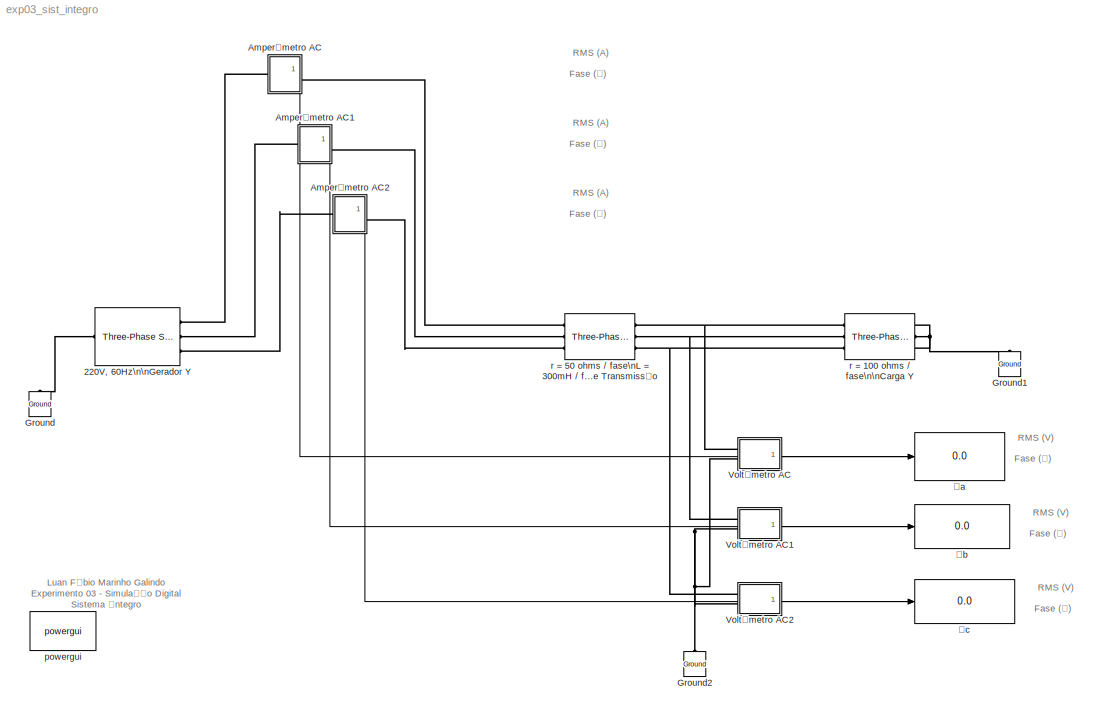
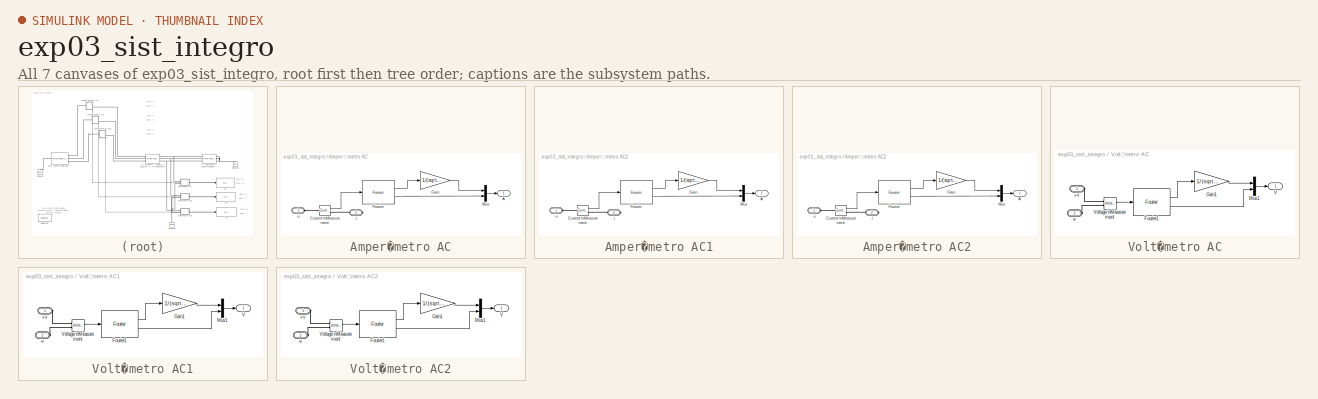
[diagram: thumbnail index - all 7 canvases of the model, root first then tree order]
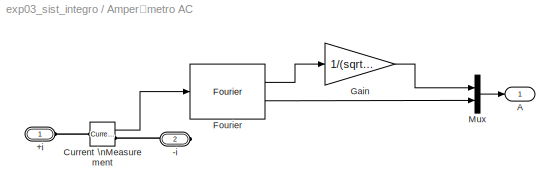
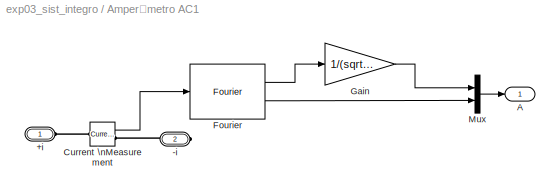
MODEL exp03_sist_integro
KIND model
BLOCK [Reference] 220V, 60Hz\n\nGerador Y  REF=powerlib/Electrical\nSources/Three-Phase Source
  BaseVoltage = 25e3
  BusType = swing
  Frequency = 60
  FunctionWithSeparateData = off
  GeneratePreprocessorConditionals = off
  Inductance = 0
  InternalConnection = Yn
  PhaseAngle = 90
  Ports = [0, 0, 0, 0, 0, 1, 3]
  Pref = 0
  Qmax = inf
  Qmin = -inf
  Qref = 0
  RTWMemSecDataConstants = Inherit from model
  RTWMemSecDataInternal = Inherit from model
  RTWMemSecDataParameters = Inherit from model
  RTWMemSecFuncExecute = Inherit from model
  RTWMemSecFuncInitTerm = Inherit from model
  Resistance = 0.001
  SID = 2
  ShortCircuitLevel = 100e6
  ShowPortLabels = FromPortIcon
  SourceBlock = powerlib/Electrical\nSources/Three-Phase Source
  SourceType = Three-Phase Source
  SpecifyImpedance = off
  SystemSampleTime = -1
  Voltage = 220
  XRratio = 7
BLOCK [SubSystem] Amperímetro AC
  FunctionWithSeparateData = off
  MaskHideContents = off
  MinAlgLoopOccurrences = off
  Opaque = off
  Ports = [0, 1, 0, 0, 0, 1, 1]
  PropExecContextOutsideSubsystem = off
  RTWSystemCode = Auto
  RequestExecContextInheritance = off
  SID = 34
BLOCK [PMIOPort] Amperímetro AC/+i
  Port = 1
  SID = 36
  Side = Left
BLOCK [PMIOPort] Amperímetro AC/-i
  Port = 2
  SID = 37
  Side = Right
BLOCK [Outport] Amperímetro AC/A
  IconDisplay = Port number
  SID = 35
BLOCK [Reference] Amperímetro AC/Current \nMeasurement  REF=powerlib/Measurements/Current Measurement
  FunctionWithSeparateData = off
  GeneratePreprocessorConditionals = off
  OutputType = Complex
  PSBequivalent = 0
  PhasorSimulation = off
  Ports = [0, 1, 0, 0, 0, 1, 1]
  RTWMemSecDataConstants = Inherit from model
  RTWMemSecDataInternal = Inherit from model
  RTWMemSecDataParameters = Inherit from model
  RTWMemSecFuncExecute = Inherit from model
  RTWMemSecFuncInitTerm = Inherit from model
  SID = 21
  ShowPortLabels = FromPortIcon
  SourceBlock = powerlib/Measurements/Current Measurement
  SourceType = Current Measurement
  SystemSampleTime = -1
BLOCK [Reference] Amperímetro AC/Fourier  REF=powerlib_extras/Measurements/Fourier
  FunctionWithSeparateData = off
  GeneratePreprocessorConditionals = off
  Ports = [1, 2]
  RTWMemSecDataConstants = Inherit from model
  RTWMemSecDataInternal = Inherit from model
  RTWMemSecDataParameters = Inherit from model
  RTWMemSecFuncExecute = Inherit from model
  RTWMemSecFuncInitTerm = Inherit from model
  SID = 22
  ShowPortLabels = FromPortIcon
  SourceBlock = powerlib_extras/Measurements/Fourier
  SourceType = Fourier analyser
  SystemSampleTime = -1
  f1 = 60
  n = 1
BLOCK [Gain] Amperímetro AC/Gain
  Gain = 1/(sqrt(2))
  OutDataTypeStr = Inherit: Inherit via internal rule
  ParamDataTypeStr = Inherit: Inherit via internal rule
  SID = 23
  SaturateOnIntegerOverflow = off
BLOCK [Mux] Amperímetro AC/Mux
  DisplayOption = bar
  Inputs = 2
  Ports = [2, 1]
  SID = 24
BLOCK [SubSystem] Amperímetro AC1
  FunctionWithSeparateData = off
  MaskHideContents = off
  MinAlgLoopOccurrences = off
  Opaque = off
  Ports = [0, 1, 0, 0, 0, 1, 1]
  PropExecContextOutsideSubsystem = off
  RTWSystemCode = Auto
  RequestExecContextInheritance = off
  SID = 42
BLOCK [PMIOPort] Amperímetro AC1/+i
  Port = 1
  SID = 47
  Side = Left
BLOCK [PMIOPort] Amperímetro AC1/-i
  Port = 2
  SID = 48
  Side = Right
BLOCK [Outport] Amperímetro AC1/A
  IconDisplay = Port number
  SID = 49
BLOCK [Reference] Amperímetro AC1/Current \nMeasurement  REF=powerlib/Measurements/Current Measurement
  FunctionWithSeparateData = off
  GeneratePreprocessorConditionals = off
  OutputType = Complex
  PSBequivalent = 0
  PhasorSimulation = off
  Ports = [0, 1, 0, 0, 0, 1, 1]
  RTWMemSecDataConstants = Inherit from model
  RTWMemSecDataInternal = Inherit from model
  RTWMemSecDataParameters = Inherit from model
  RTWMemSecFuncExecute = Inherit from model
  RTWMemSecFuncInitTerm = Inherit from model
  SID = 43
  ShowPortLabels = FromPortIcon
  SourceBlock = powerlib/Measurements/Current Measurement
  SourceType = Current Measurement
  SystemSampleTime = -1
BLOCK [Reference] Amperímetro AC1/Fourier  REF=powerlib_extras/Measurements/Fourier
  FunctionWithSeparateData = off
  GeneratePreprocessorConditionals = off
  Ports = [1, 2]
  RTWMemSecDataConstants = Inherit from model
  RTWMemSecDataInternal = Inherit from model
  RTWMemSecDataParameters = Inherit from model
  RTWMemSecFuncExecute = Inherit from model
  RTWMemSecFuncInitTerm = Inherit from model
  SID = 44
  ShowPortLabels = FromPortIcon
  SourceBlock = powerlib_extras/Measurements/Fourier
  SourceType = Fourier analyser
  SystemSampleTime = -1
  f1 = 60
  n = 1
BLOCK [Gain] Amperímetro AC1/Gain
  Gain = 1/(sqrt(2))
  OutDataTypeStr = Inherit: Inherit via internal rule
  ParamDataTypeStr = Inherit: Inherit via internal rule
  SID = 45
  SaturateOnIntegerOverflow = off
BLOCK [Mux] Amperímetro AC1/Mux
  DisplayOption = bar
  Inputs = 2
  Ports = [2, 1]
  SID = 46
BLOCK [SubSystem] Amperímetro AC2
  FunctionWithSeparateData = off
  MaskHideContents = off
  MinAlgLoopOccurrences = off
  Opaque = off
  Ports = [0, 1, 0, 0, 0, 1, 1]
  PropExecContextOutsideSubsystem = off
  RTWSystemCode = Auto
  RequestExecContextInheritance = off
  SID = 50
BLOCK [PMIOPort] Amperímetro AC2/+i
  Port = 1
  SID = 55
  Side = Left
BLOCK [PMIOPort] Amperímetro AC2/-i
  Port = 2
  SID = 56
  Side = Right
BLOCK [Outport] Amperímetro AC2/A
  IconDisplay = Port number
  SID = 57
BLOCK [Reference] Amperímetro AC2/Current \nMeasurement  REF=powerlib/Measurements/Current Measurement
  FunctionWithSeparateData = off
  GeneratePreprocessorConditionals = off
  OutputType = Complex
  PSBequivalent = 0
  PhasorSimulation = off
  Ports = [0, 1, 0, 0, 0, 1, 1]
  RTWMemSecDataConstants = Inherit from model
  RTWMemSecDataInternal = Inherit from model
  RTWMemSecDataParameters = Inherit from model
  RTWMemSecFuncExecute = Inherit from model
  RTWMemSecFuncInitTerm = Inherit from model
  SID = 51
  ShowPortLabels = FromPortIcon
  SourceBlock = powerlib/Measurements/Current Measurement
  SourceType = Current Measurement
  SystemSampleTime = -1
BLOCK [Reference] Amperímetro AC2/Fourier  REF=powerlib_extras/Measurements/Fourier
  FunctionWithSeparateData = off
  GeneratePreprocessorConditionals = off
  Ports = [1, 2]
  RTWMemSecDataConstants = Inherit from model
  RTWMemSecDataInternal = Inherit from model
  RTWMemSecDataParameters = Inherit from model
  RTWMemSecFuncExecute = Inherit from model
  RTWMemSecFuncInitTerm = Inherit from model
  SID = 52
  ShowPortLabels = FromPortIcon
  SourceBlock = powerlib_extras/Measurements/Fourier
  SourceType = Fourier analyser
  SystemSampleTime = -1
  f1 = 60
  n = 1
BLOCK [Gain] Amperímetro AC2/Gain
  Gain = 1/(sqrt(2))
  OutDataTypeStr = Inherit: Inherit via internal rule
  ParamDataTypeStr = Inherit: Inherit via internal rule
  SID = 53
  SaturateOnIntegerOverflow = off
BLOCK [Mux] Amperímetro AC2/Mux
  DisplayOption = bar
  Inputs = 2
  Ports = [2, 1]
  SID = 54
BLOCK [Reference] Ground  REF=powerlib/Elements/Ground
  LConnTagsString = a
  LeftPortType = p1
  PhysicalDomain = powersysdomain
  Ports = [0, 0, 0, 0, 0, 1]
  RightPortType = p1
  SID = 3
  SourceBlock = powerlib/Elements/Ground
  SourceType = Ground
  SubClassName = unknown
BLOCK [Reference] Ground1  REF=powerlib/Elements/Ground
  LConnTagsString = a
  LeftPortType = p1
  PhysicalDomain = powersysdomain
  Ports = [0, 0, 0, 0, 0, 1]
  RightPortType = p1
  SID = 19
  SourceBlock = powerlib/Elements/Ground
  SourceType = Ground
  SubClassName = unknown
BLOCK [Reference] Ground2  REF=powerlib/Elements/Ground
  LConnTagsString = a
  LeftPortType = p1
  PhysicalDomain = powersysdomain
  Ports = [0, 0, 0, 0, 0, 1]
  RightPortType = p1
  SID = 20
  SourceBlock = powerlib/Elements/Ground
  SourceType = Ground
  SubClassName = unknown
BLOCK [SubSystem] Voltímetro AC
  FunctionWithSeparateData = off
  MaskHideContents = off
  MinAlgLoopOccurrences = off
  Opaque = off
  Ports = [0, 1, 0, 0, 0, 2]
  PropExecContextOutsideSubsystem = off
  RTWSystemCode = Auto
  RequestExecContextInheritance = off
  SID = 38
BLOCK [PMIOPort] Voltímetro AC/+v
  Port = 1
  SID = 40
  Side = Left
BLOCK [PMIOPort] Voltímetro AC/-v
  Port = 2
  SID = 41
  Side = Left
BLOCK [Reference] Voltímetro AC/Fourier1  REF=powerlib_extras/Measurements/Fourier
  FunctionWithSeparateData = off
  GeneratePreprocessorConditionals = off
  Ports = [1, 2]
  RTWMemSecDataConstants = Inherit from model
  RTWMemSecDataInternal = Inherit from model
  RTWMemSecDataParameters = Inherit from model
  RTWMemSecFuncExecute = Inherit from model
  RTWMemSecFuncInitTerm = Inherit from model
  SID = 26
  ShowPortLabels = FromPortIcon
  SourceBlock = powerlib_extras/Measurements/Fourier
  SourceType = Fourier analyser
  SystemSampleTime = -1
  f1 = 60
  n = 1
BLOCK [Gain] Voltímetro AC/Gain1
  Gain = 1/(sqrt(2))
  OutDataTypeStr = Inherit: Inherit via internal rule
  ParamDataTypeStr = Inherit: Inherit via internal rule
  SID = 29
  SaturateOnIntegerOverflow = off
BLOCK [Mux] Voltímetro AC/Mux1
  DisplayOption = bar
  Inputs = 2
  Ports = [2, 1]
  SID = 25
BLOCK [Outport] Voltímetro AC/V
  IconDisplay = Port number
  SID = 39
BLOCK [Reference] Voltímetro AC/Voltage \nMeasurement  REF=powerlib/Measurements/Voltage Measurement
  FunctionWithSeparateData = off
  GeneratePreprocessorConditionals = off
  OutputType = Complex
  PSBequivalent = 0
  PhasorSimulation = off
  Ports = [0, 1, 0, 0, 0, 2]
  RTWMemSecDataConstants = Inherit from model
  RTWMemSecDataInternal = Inherit from model
  RTWMemSecDataParameters = Inherit from model
  RTWMemSecFuncExecute = Inherit from model
  RTWMemSecFuncInitTerm = Inherit from model
  SID = 28
  ShowPortLabels = FromPortIcon
  SourceBlock = powerlib/Measurements/Voltage Measurement
  SourceType = Voltage Measurement
  SystemSampleTime = -1
BLOCK [SubSystem] Voltímetro AC1
  FunctionWithSeparateData = off
  MaskHideContents = off
  MinAlgLoopOccurrences = off
  Opaque = off
  Ports = [0, 1, 0, 0, 0, 2]
  PropExecContextOutsideSubsystem = off
  RTWSystemCode = Auto
  RequestExecContextInheritance = off
  SID = 58
BLOCK [PMIOPort] Voltímetro AC1/+v
  Port = 1
  SID = 63
  Side = Left
BLOCK [PMIOPort] Voltímetro AC1/-v
  Port = 2
  SID = 64
  Side = Left
BLOCK [Reference] Voltímetro AC1/Fourier1  REF=powerlib_extras/Measurements/Fourier
  FunctionWithSeparateData = off
  GeneratePreprocessorConditionals = off
  Ports = [1, 2]
  RTWMemSecDataConstants = Inherit from model
  RTWMemSecDataInternal = Inherit from model
  RTWMemSecDataParameters = Inherit from model
  RTWMemSecFuncExecute = Inherit from model
  RTWMemSecFuncInitTerm = Inherit from model
  SID = 59
  ShowPortLabels = FromPortIcon
  SourceBlock = powerlib_extras/Measurements/Fourier
  SourceType = Fourier analyser
  SystemSampleTime = -1
  f1 = 60
  n = 1
BLOCK [Gain] Voltímetro AC1/Gain1
  Gain = 1/(sqrt(2))
  OutDataTypeStr = Inherit: Inherit via internal rule
  ParamDataTypeStr = Inherit: Inherit via internal rule
  SID = 60
  SaturateOnIntegerOverflow = off
BLOCK [Mux] Voltímetro AC1/Mux1
  DisplayOption = bar
  Inputs = 2
  Ports = [2, 1]
  SID = 61
BLOCK [Outport] Voltímetro AC1/V
  IconDisplay = Port number
  SID = 65
BLOCK [Reference] Voltímetro AC1/Voltage \nMeasurement  REF=powerlib/Measurements/Voltage Measurement
  FunctionWithSeparateData = off
  GeneratePreprocessorConditionals = off
  OutputType = Complex
  PSBequivalent = 0
  PhasorSimulation = off
  Ports = [0, 1, 0, 0, 0, 2]
  RTWMemSecDataConstants = Inherit from model
  RTWMemSecDataInternal = Inherit from model
  RTWMemSecDataParameters = Inherit from model
  RTWMemSecFuncExecute = Inherit from model
  RTWMemSecFuncInitTerm = Inherit from model
  SID = 62
  ShowPortLabels = FromPortIcon
  SourceBlock = powerlib/Measurements/Voltage Measurement
  SourceType = Voltage Measurement
  SystemSampleTime = -1
BLOCK [SubSystem] Voltímetro AC2
  FunctionWithSeparateData = off
  MaskHideContents = off
  MinAlgLoopOccurrences = off
  Opaque = off
  Ports = [0, 1, 0, 0, 0, 2]
  PropExecContextOutsideSubsystem = off
  RTWSystemCode = Auto
  RequestExecContextInheritance = off
  SID = 66
BLOCK [PMIOPort] Voltímetro AC2/+v
  Port = 1
  SID = 71
  Side = Left
BLOCK [PMIOPort] Voltímetro AC2/-v
  Port = 2
  SID = 72
  Side = Left
BLOCK [Reference] Voltímetro AC2/Fourier1  REF=powerlib_extras/Measurements/Fourier
  FunctionWithSeparateData = off
  GeneratePreprocessorConditionals = off
  Ports = [1, 2]
  RTWMemSecDataConstants = Inherit from model
  RTWMemSecDataInternal = Inherit from model
  RTWMemSecDataParameters = Inherit from model
  RTWMemSecFuncExecute = Inherit from model
  RTWMemSecFuncInitTerm = Inherit from model
  SID = 67
  ShowPortLabels = FromPortIcon
  SourceBlock = powerlib_extras/Measurements/Fourier
  SourceType = Fourier analyser
  SystemSampleTime = -1
  f1 = 60
  n = 1
BLOCK [Gain] Voltímetro AC2/Gain1
  Gain = 1/(sqrt(2))
  OutDataTypeStr = Inherit: Inherit via internal rule
  ParamDataTypeStr = Inherit: Inherit via internal rule
  SID = 68
  SaturateOnIntegerOverflow = off
BLOCK [Mux] Voltímetro AC2/Mux1
  DisplayOption = bar
  Inputs = 2
  Ports = [2, 1]
  SID = 69
BLOCK [Outport] Voltímetro AC2/V
  IconDisplay = Port number
  SID = 73
BLOCK [Reference] Voltímetro AC2/Voltage \nMeasurement  REF=powerlib/Measurements/Voltage Measurement
  FunctionWithSeparateData = off
  GeneratePreprocessorConditionals = off
  OutputType = Complex
  PSBequivalent = 0
  PhasorSimulation = off
  Ports = [0, 1, 0, 0, 0, 2]
  RTWMemSecDataConstants = Inherit from model
  RTWMemSecDataInternal = Inherit from model
  RTWMemSecDataParameters = Inherit from model
  RTWMemSecFuncExecute = Inherit from model
  RTWMemSecFuncInitTerm = Inherit from model
  SID = 70
  ShowPortLabels = FromPortIcon
  SourceBlock = powerlib/Measurements/Voltage Measurement
  SourceType = Voltage Measurement
  SystemSampleTime = -1
BLOCK [Reference] powergui  REF=powerlib/powergui
  DisableRonSwitches = off
  DisableSnubberDevices = off
  DisableVfSwitches = off
  DisplayEquations = off
  DisplayStyle = 1
  EnableUseOfTLC = off
  ErrMax = 1e-4
  FreqAxis = off
  FunctionMessages = off
  FunctionWithSeparateData = off
  GeneratePreprocessorConditionals = off
  HookPort = off
  Interpol = off
  Iterations = 50
  MaxFrequency = 1000
  Pbase = 100e6
  Ports = []
  Priority = 1
  RTWMemSecDataConstants = Inherit from model
  RTWMemSecDataInternal = Inherit from model
  RTWMemSecDataParameters = Inherit from model
  RTWMemSecFuncExecute = Inherit from model
  RTWMemSecFuncInitTerm = Inherit from model
  ResistiveCurrentMeasurement = off
  RestoreLinks = warning
  SID = 74
  SPID = off
  SampleTime = 50e-6
  ShowGrid = off
  ShowPortLabels = FromPortIcon
  SourceBlock = powerlib/powergui
  SourceType = PSB option menu block
  StartTime = 0.0
  SwTol = 0
  SystemSampleTime = -1
  UnitsV = kV
  UnitsW = MW
  UserData = DataTag0
  UserDataPersistent = on
  Xlog = on
  Ylog = off
  ZoomFFT = off
  cycles = 1
  display = off
  echomessages = off
  frequency = 60
  frequencyindice = 60
  frequencyindicesteady = 1
  methode = off
  save = off
  variable = ZData
  x0status = blocks
BLOCK [Reference] r = 100 ohms // fase\n\nCarga Y  REF=powerlib/Elements/Three-Phase\nSeries RLC Branch
  AttributesFormatString = \\n
  BranchType = R
  Capacitance = 1e-6
  Inductance = 1e-3
  LConnTagsString = A|B|C
  LeftPortType = p1
  Measurements = None
  PhysicalDomain = powersysdomain
  Ports = [0, 0, 0, 0, 0, 3, 3]
  RConnTagsString = A|B|C
  Resistance = 100
  RightPortType = p1
  SID = 9
  SourceBlock = powerlib/Elements/Three-Phase\nSeries RLC Branch
  SourceType = Three-Phase Series RLC Branch
  SubClassName = unknown
BLOCK [Reference] r = 50 ohms // fase\nL = 300mH // fase\n\nLinha de Transmissão  REF=powerlib/Elements/Three-Phase\nSeries RLC Branch
  AttributesFormatString = \\n
  BranchType = RL
  Capacitance = 1e-6
  Inductance = 300e-3
  LConnTagsString = A|B|C
  LeftPortType = p1
  Measurements = None
  PhysicalDomain = powersysdomain
  Ports = [0, 0, 0, 0, 0, 3, 3]
  RConnTagsString = A|B|C
  Resistance = 50
  RightPortType = p1
  SID = 8
  SourceBlock = powerlib/Elements/Three-Phase\nSeries RLC Branch
  SourceType = Three-Phase Series RLC Branch
  SubClassName = unknown
BLOCK [Display] Îa
  Decimation = 1
  Format = bank
  Lockdown = off
  Ports = [1]
  SID = 15
BLOCK [Display] Îb
  Decimation = 1
  Format = bank
  Lockdown = off
  Ports = [1]
  SID = 14
BLOCK [Display] Îc
  Decimation = 1
  Format = bank
  Lockdown = off
  Ports = [1]
  SID = 13
BLOCK [Display] Ûa
  Decimation = 1
  Format = bank
  Lockdown = off
  Ports = [1]
  SID = 17
BLOCK [Display] Ûb
  Decimation = 1
  Format = bank
  Lockdown = off
  Ports = [1]
  SID = 16
BLOCK [Display] Ûc
  Decimation = 1
  Format = bank
  Lockdown = off
  Ports = [1]
  SID = 18
ANNOTATION (root): Fase (º)
ANNOTATION (root): Luan Fábio Marinho Galindo\nExperimento 03 - Simulação Digital\nSistema Íntegro
ANNOTATION (root): RMS (A)
ANNOTATION (root): RMS (V)
LINE Amperímetro AC/Current \nMeasurement:1 -> Amperímetro AC/Fourier:1
LINE Amperímetro AC/Fourier:1 -> Amperímetro AC/Gain:1
LINE Amperímetro AC/Fourier:2 -> Amperímetro AC/Mux:2
LINE Amperímetro AC/Gain:1 -> Amperímetro AC/Mux:1
LINE Amperímetro AC/Mux:1 -> Amperímetro AC/A:1
LINE Amperímetro AC1/Current \nMeasurement:1 -> Amperímetro AC1/Fourier:1
LINE Amperímetro AC1/Fourier:1 -> Amperímetro AC1/Gain:1
LINE Amperímetro AC1/Fourier:2 -> Amperímetro AC1/Mux:2
LINE Amperímetro AC1/Gain:1 -> Amperímetro AC1/Mux:1
LINE Amperímetro AC1/Mux:1 -> Amperímetro AC1/A:1
LINE Amperímetro AC1:1 -> Îb:1
LINE Amperímetro AC2/Current \nMeasurement:1 -> Amperímetro AC2/Fourier:1
LINE Amperímetro AC2/Fourier:1 -> Amperímetro AC2/Gain:1
LINE Amperímetro AC2/Fourier:2 -> Amperímetro AC2/Mux:2
LINE Amperímetro AC2/Gain:1 -> Amperímetro AC2/Mux:1
LINE Amperímetro AC2/Mux:1 -> Amperímetro AC2/A:1
LINE Amperímetro AC2:1 -> Îc:1
LINE Amperímetro AC:1 -> Îa:1
LINE Voltímetro AC/Fourier1:1 -> Voltímetro AC/Gain1:1
LINE Voltímetro AC/Fourier1:2 -> Voltímetro AC/Mux1:2
LINE Voltímetro AC/Gain1:1 -> Voltímetro AC/Mux1:1
LINE Voltímetro AC/Mux1:1 -> Voltímetro AC/V:1
LINE Voltímetro AC/Voltage \nMeasurement:1 -> Voltímetro AC/Fourier1:1
LINE Voltímetro AC1/Fourier1:1 -> Voltímetro AC1/Gain1:1
LINE Voltímetro AC1/Fourier1:2 -> Voltímetro AC1/Mux1:2
LINE Voltímetro AC1/Gain1:1 -> Voltímetro AC1/Mux1:1
LINE Voltímetro AC1/Mux1:1 -> Voltímetro AC1/V:1
LINE Voltímetro AC1/Voltage \nMeasurement:1 -> Voltímetro AC1/Fourier1:1
LINE Voltímetro AC1:1 -> Ûb:1
LINE Voltímetro AC2/Fourier1:1 -> Voltímetro AC2/Gain1:1
LINE Voltímetro AC2/Fourier1:2 -> Voltímetro AC2/Mux1:2
LINE Voltímetro AC2/Gain1:1 -> Voltímetro AC2/Mux1:1
LINE Voltímetro AC2/Mux1:1 -> Voltímetro AC2/V:1
LINE Voltímetro AC2/Voltage \nMeasurement:1 -> Voltímetro AC2/Fourier1:1
LINE Voltímetro AC2:1 -> Ûc:1
LINE Voltímetro AC:1 -> Ûa:1
PLINE 220V, 60Hz\n\nGerador Y:LConn1 -- Ground:LConn1
PLINE 220V, 60Hz\n\nGerador Y:RConn1 -- Amperímetro AC:LConn1
PLINE 220V, 60Hz\n\nGerador Y:RConn2 -- Amperímetro AC1:LConn1
PLINE 220V, 60Hz\n\nGerador Y:RConn3 -- Amperímetro AC2:LConn1
PLINE Amperímetro AC/+i:RConn1 -- Amperímetro AC/Current \nMeasurement:LConn1
PLINE Amperímetro AC/-i:RConn1 -- Amperímetro AC/Current \nMeasurement:RConn1
PLINE Amperímetro AC1/+i:RConn1 -- Amperímetro AC1/Current \nMeasurement:LConn1
PLINE Amperímetro AC1/-i:RConn1 -- Amperímetro AC1/Current \nMeasurement:RConn1
PLINE Amperímetro AC1:RConn1 -- r = 50 ohms // fase\nL = 300mH // fase\n\nLinha de Transmissão:LConn2
PLINE Amperímetro AC2/+i:RConn1 -- Amperímetro AC2/Current \nMeasurement:LConn1
PLINE Amperímetro AC2/-i:RConn1 -- Amperímetro AC2/Current \nMeasurement:RConn1
PLINE Amperímetro AC2:RConn1 -- r = 50 ohms // fase\nL = 300mH // fase\n\nLinha de Transmissão:LConn3
PLINE Amperímetro AC:RConn1 -- r = 50 ohms // fase\nL = 300mH // fase\n\nLinha de Transmissão:LConn1
PNET net1: Ground1:LConn1 -- r = 100 ohms // fase\n\nCarga Y:RConn1 -- r = 100 ohms // fase\n\nCarga Y:RConn2 -- r = 100 ohms // fase\n\nCarga Y:RConn3
PNET net2: Ground2:LConn1 -- Voltímetro AC1:LConn2 -- Voltímetro AC2:LConn2 -- Voltímetro AC:LConn2
PLINE Voltímetro AC/+v:RConn1 -- Voltímetro AC/Voltage \nMeasurement:LConn1
PLINE Voltímetro AC/-v:RConn1 -- Voltímetro AC/Voltage \nMeasurement:LConn2
PLINE Voltímetro AC1/+v:RConn1 -- Voltímetro AC1/Voltage \nMeasurement:LConn1
PLINE Voltímetro AC1/-v:RConn1 -- Voltímetro AC1/Voltage \nMeasurement:LConn2
PNET net3: Voltímetro AC1:LConn1 -- r = 100 ohms // fase\n\nCarga Y:LConn2 -- r = 50 ohms // fase\nL = 300mH // fase\n\nLinha de Transmissão:RConn2
PLINE Voltímetro AC2/+v:RConn1 -- Voltímetro AC2/Voltage \nMeasurement:LConn1
PLINE Voltímetro AC2/-v:RConn1 -- Voltímetro AC2/Voltage \nMeasurement:LConn2
PNET net4: Voltímetro AC2:LConn1 -- r = 100 ohms // fase\n\nCarga Y:LConn3 -- r = 50 ohms // fase\nL = 300mH // fase\n\nLinha de Transmissão:RConn3
PNET net5: Voltímetro AC:LConn1 -- r = 100 ohms // fase\n\nCarga Y:LConn1 -- r = 50 ohms // fase\nL = 300mH // fase\n\nLinha de Transmissão:RConn1
note: PNET lines group multi-terminal physical nets as a canonical sorted terminal list (undirected conserving connections); 2-terminal nets keep the pairwise PLINE form
